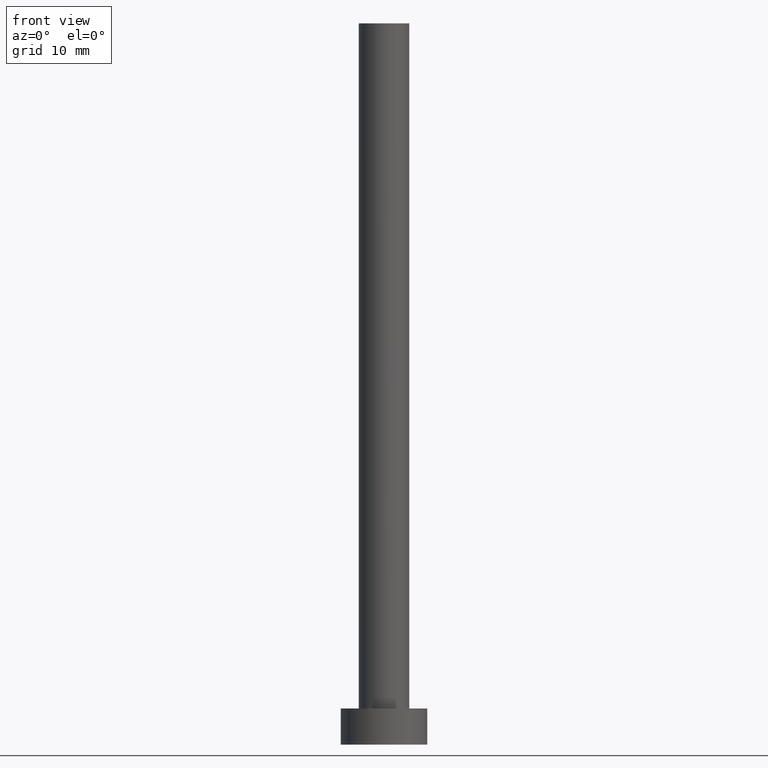
[diagram: clean part render]
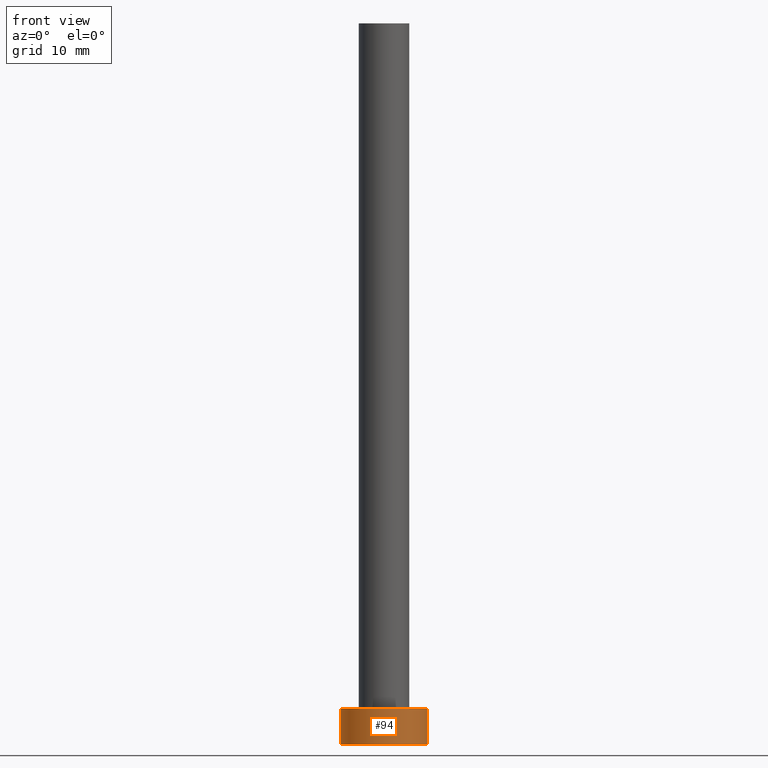
[diagram: same view with one face highlighted and labeled with its STEP entity id]
A machine part, front view. The second image highlights one B-rep face of the part: STEP entity #94.
In plain terms, the highlighted cylindrical surface (partial cylindrical patch) has radius 6 mm, axis along (-0, -0, -1).
Its self-contained STEP definition (entity closure, byte-faithful):
#3 = VECTOR ( 'NONE', #207, 1000.000000000000000 ) ;
#4 = DIRECTION ( 'NONE',  ( 1.000000000000000000, 0.000000000000000000, 0.000000000000000000 ) ) ;
#5 = EDGE_CURVE ( 'NONE', #45, #202, #55, .T. ) ;
#7 = CARTESIAN_POINT ( 'NONE',  ( -6.000000000000000888, 0.000000000000000000, 0.000000000000000000 ) ) ;
#21 = EDGE_CURVE ( 'NONE', #202, #27, #82, .T. ) ;
#27 = VERTEX_POINT ( 'NONE', #166 ) ;
#34 = CARTESIAN_POINT ( 'NONE',  ( 0.000000000000000000, 0.000000000000000000, 5.000000000000000000 ) ) ;
#35 = AXIS2_PLACEMENT_3D ( 'NONE', #78, #89, #133 ) ;
#44 = CARTESIAN_POINT ( 'NONE',  ( 6.000000000000000888, 7.347880794884120722E-16, 5.000000000000000000 ) ) ;
#45 = VERTEX_POINT ( 'NONE', #168 ) ;
#51 = VECTOR ( 'NONE', #63, 1000.000000000000000 ) ;
#55 = LINE ( 'NONE', #211, #3 ) ;
#63 = DIRECTION ( 'NONE',  ( -0.000000000000000000, -0.000000000000000000, -1.000000000000000000 ) ) ;
#68 = EDGE_LOOP ( 'NONE', ( #225, #125, #102, #141 ) ) ;
#70 = CIRCLE ( 'NONE', #76, 6.000000000000000888 ) ;
#75 = FACE_OUTER_BOUND ( 'NONE', #68, .T. ) ;
#76 = AXIS2_PLACEMENT_3D ( 'NONE', #220, #83, #4 ) ;
#78 = CARTESIAN_POINT ( 'NONE',  ( 0.000000000000000000, 0.000000000000000000, 0.000000000000000000 ) ) ;
#82 = CIRCLE ( 'NONE', #35, 6.000000000000000888 ) ;
#83 = DIRECTION ( 'NONE',  ( 0.000000000000000000, 0.000000000000000000, 1.000000000000000000 ) ) ;
#89 = DIRECTION ( 'NONE',  ( 0.000000000000000000, 0.000000000000000000, 1.000000000000000000 ) ) ;
#94 = ADVANCED_FACE ( 'NONE', ( #75 ), #146, .T. ) ;
#102 = ORIENTED_EDGE ( 'NONE', *, *, #5, .T. ) ;
#110 = DIRECTION ( 'NONE',  ( -0.000000000000000000, -0.000000000000000000, -1.000000000000000000 ) ) ;
#125 = ORIENTED_EDGE ( 'NONE', *, *, #183, .F. ) ;
#133 = DIRECTION ( 'NONE',  ( 1.000000000000000000, 0.000000000000000000, 0.000000000000000000 ) ) ;
#138 = EDGE_CURVE ( 'NONE', #233, #27, #172, .T. ) ;
#141 = ORIENTED_EDGE ( 'NONE', *, *, #21, .T. ) ;
#146 = CYLINDRICAL_SURFACE ( 'NONE', #218, 6.000000000000000888 ) ;
#166 = CARTESIAN_POINT ( 'NONE',  ( 6.000000000000000888, 7.347880794884120722E-16, 0.000000000000000000 ) ) ;
#168 = CARTESIAN_POINT ( 'NONE',  ( -6.000000000000000888, 0.000000000000000000, 5.000000000000000000 ) ) ;
#170 = CARTESIAN_POINT ( 'NONE',  ( 6.000000000000000888, 7.347880794884120722E-16, 5.000000000000000000 ) ) ;
#172 = LINE ( 'NONE', #44, #51 ) ;
#183 = EDGE_CURVE ( 'NONE', #45, #233, #70, .T. ) ;
#195 = DIRECTION ( 'NONE',  ( -1.000000000000000000, 0.000000000000000000, 0.000000000000000000 ) ) ;
#202 = VERTEX_POINT ( 'NONE', #7 ) ;
#207 = DIRECTION ( 'NONE',  ( -0.000000000000000000, -0.000000000000000000, -1.000000000000000000 ) ) ;
#211 = CARTESIAN_POINT ( 'NONE',  ( -6.000000000000000888, 0.000000000000000000, 5.000000000000000000 ) ) ;
#218 = AXIS2_PLACEMENT_3D ( 'NONE', #34, #110, #195 ) ;
#220 = CARTESIAN_POINT ( 'NONE',  ( 0.000000000000000000, 0.000000000000000000, 5.000000000000000000 ) ) ;
#225 = ORIENTED_EDGE ( 'NONE', *, *, #138, .F. ) ;
#233 = VERTEX_POINT ( 'NONE', #170 ) ;